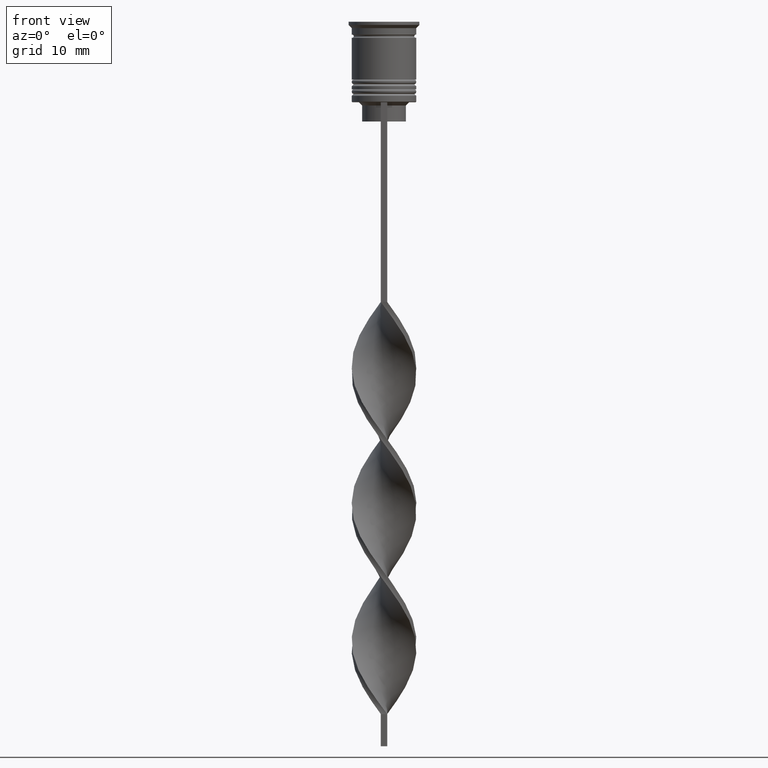
[diagram: clean part render]
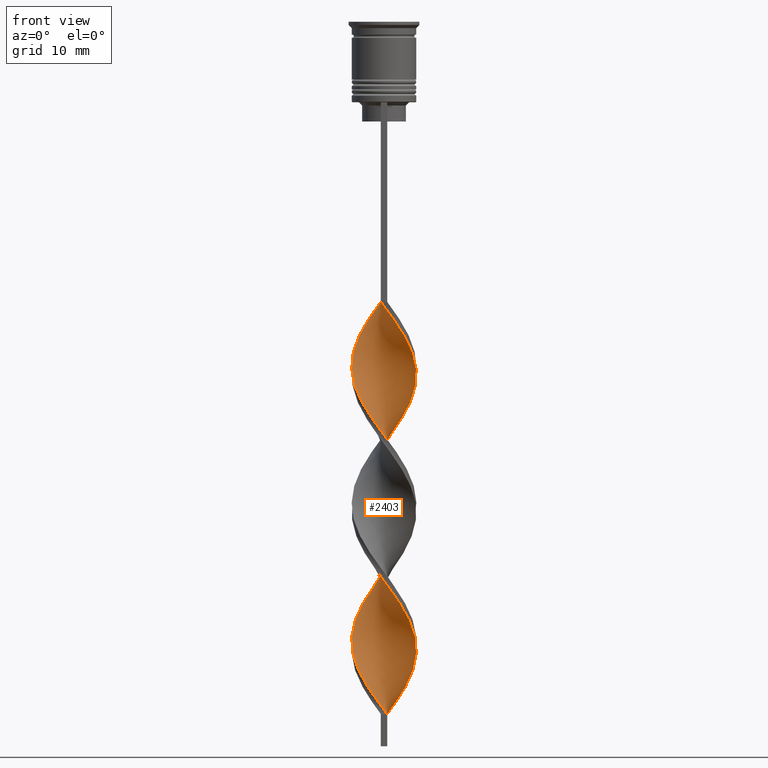
[diagram: same view with one face highlighted and labeled with its STEP entity id]
A machine part, front view. The second image highlights one B-rep face of the part: STEP entity #2403.
In plain terms, the highlighted face is a freeform B-spline surface patch.
Its self-contained STEP definition (entity closure, byte-faithful):
#20 = CARTESIAN_POINT ( 'NONE',  ( -1.107109916111305381, -4.939289008388868751, -85.34615384615383959 ) ) ;
#24 = CARTESIAN_POINT ( 'NONE',  ( -4.852383656948343393, 1.305516313869971912, -51.70512820512820440 ) ) ;
#34 = CARTESIAN_POINT ( 'NONE',  ( -4.852383656948343393, 1.305516313869971912, -51.70512820512820440 ) ) ;
#36 = CARTESIAN_POINT ( 'NONE',  ( -4.497778769905806939, -2.240532556555384858, -56.62820512820513130 ) ) ;
#48 = CARTESIAN_POINT ( 'NONE',  ( -2.256988544190326795, 4.530813501584094460, -45.96153846153845279 ) ) ;
#51 = CARTESIAN_POINT ( 'NONE',  ( -4.225728863414810910, -2.786661774892328580, -57.44871794871794890 ) ) ;
#70 = CARTESIAN_POINT ( 'NONE',  ( -3.436045048790600465, -3.716969558312885891, -59.08974358974359120 ) ) ;
#73 = CARTESIAN_POINT ( 'NONE',  ( -0.1071099161113050757, -5.060710991611131249, -106.6794871794871824 ) ) ;
#85 = CARTESIAN_POINT ( 'NONE',  ( -1.880887847392239021, -4.659641714287934278, -61.55128205128204399 ) ) ;
#89 = CARTESIAN_POINT ( 'NONE',  ( -5.023812710617932886, 0.1063289642275891955, -96.01282051282051100 ) ) ;
#99 = CARTESIAN_POINT ( 'NONE',  ( 2.446670785446254381, 4.431260581638921003, -82.06410256410255499 ) ) ;
#102 = CARTESIAN_POINT ( 'NONE',  ( 0.1071099161113025777, -5.060710991611129472, -44.32051282051282470 ) ) ;
#103 = CARTESIAN_POINT ( 'NONE',  ( 4.398951702833860722, -2.428831800708952215, -71.39743589743588359 ) ) ;
#125 = CARTESIAN_POINT ( 'NONE',  ( 1.107109916111304937, 4.939289008388868751, -64.01282051282051100 ) ) ;
#141 = CARTESIAN_POINT ( 'NONE',  ( -4.225728863414810910, -2.786661774892328136, -100.1153846153846274 ) ) ;
#144 = CARTESIAN_POINT ( 'NONE',  ( -1.682049230150818975, -4.735051254986478497, -84.52564102564103621 ) ) ;
#161 = CARTESIAN_POINT ( 'NONE',  ( 4.225728863414809133, -2.786661774892328136, -50.88461538461537970 ) ) ;
#185 = CARTESIAN_POINT ( 'NONE',  ( -2.766343873045450152, -4.194918542244163717, -82.88461538461537259 ) ) ;
#222 = CARTESIAN_POINT ( 'NONE',  ( 5.036723384328412934, -0.5036723384328417596, -96.83333333333332860 ) ) ;
#239 = EDGE_LOOP ( 'NONE', ( #1200, #953, #3186, #1081 ) ) ;
#242 = CARTESIAN_POINT ( 'NONE',  ( 4.398951702833859834, 2.428831800708949995, -58.26923076923076650 ) ) ;
#246 = VECTOR ( 'NONE', #3669, 1000.000000000000000 ) ;
#263 = CARTESIAN_POINT ( 'NONE',  ( -4.398951702833860722, -2.428831800708949551, -79.60256410256410220 ) ) ;
#280 = CARTESIAN_POINT ( 'NONE',  ( 1.107109916111304715, 4.939289008388868751, -64.01282051282051100 ) ) ;
#295 = CARTESIAN_POINT ( 'NONE',  ( -1.682049230150818975, -4.735051254986478497, -84.52564102564103621 ) ) ;
#317 = CARTESIAN_POINT ( 'NONE',  ( 0.4999999999999993339, -5.000000000000000888, -64.83333333333332860 ) ) ;
#321 = CARTESIAN_POINT ( 'NONE',  ( 3.830886956102703245, -3.251815666602607013, -50.06410256410256210 ) ) ;
#322 = CARTESIAN_POINT ( 'NONE',  ( -4.398951702833860722, 2.428831800708952215, -92.73076923076922640 ) ) ;
#333 = CARTESIAN_POINT ( 'NONE',  ( 5.036723384328414710, 0.5036723384328404274, -75.49999999999998579 ) ) ;
#335 = CARTESIAN_POINT ( 'NONE',  ( -3.830886956102705021, -3.251815666602607013, -100.9358974358974308 ) ) ;
#346 = CARTESIAN_POINT ( 'NONE',  ( -4.398951702833860722, 2.428831800708952215, -92.73076923076922640 ) ) ;
#351 = CARTESIAN_POINT ( 'NONE',  ( -3.436045048790600465, -3.716969558312885891, -59.08974358974358410 ) ) ;
#369 = CARTESIAN_POINT ( 'NONE',  ( -5.010902036907451063, 0.7163302668880185964, -52.52564102564103621 ) ) ;
#374 = CARTESIAN_POINT ( 'NONE',  ( 1.315104909338225214, 4.888022846936948440, -83.70512820512820440 ) ) ;
#384 = CARTESIAN_POINT ( 'NONE',  ( -3.689868665289526728, 3.410992411735109364, -48.42307692307691269 ) ) ;
#387 = CARTESIAN_POINT ( 'NONE',  ( 4.497778769905806939, 2.240532556555385302, -77.96153846153845279 ) ) ;
#400 = CARTESIAN_POINT ( 'NONE',  ( 5.010902036907447510, 0.7163302668880174862, -55.80769230769230660 ) ) ;
#420 = CARTESIAN_POINT ( 'NONE',  ( 2.256988544190328128, 4.530813501584091796, -62.37179487179486870 ) ) ;
#421 = CARTESIAN_POINT ( 'NONE',  ( 1.315104909338222106, -4.888022846936947552, -45.96153846153845279 ) ) ;
#436 = CARTESIAN_POINT ( 'NONE',  ( -0.1071099161113013842, 5.060710991611129472, -65.65384615384614619 ) ) ;
#450 = CARTESIAN_POINT ( 'NONE',  ( -3.830886956102705021, -3.251815666602607013, -100.9358974358974308 ) ) ;
#452 = CARTESIAN_POINT ( 'NONE',  ( -4.693865276989234836, -1.894702360851920231, -78.78205128205127039 ) ) ;
#454 = CARTESIAN_POINT ( 'NONE',  ( 4.225728863414809133, -2.786661774892327692, -50.88461538461538680 ) ) ;
#476 = CARTESIAN_POINT ( 'NONE',  ( -4.225728863414807357, 2.786661774892330357, -72.21794871794871540 ) ) ;
#496 = CARTESIAN_POINT ( 'NONE',  ( -4.903276030362607507, 1.099037838325644723, -74.67948717948718240 ) ) ;
#515 = CARTESIAN_POINT ( 'NONE',  ( 4.497778769905805163, -2.240532556555385746, -94.37179487179486159 ) ) ;
#537 = CARTESIAN_POINT ( 'NONE',  ( -2.446670785446251273, 4.431260581638920115, -68.93589743589743080 ) ) ;
#557 = CARTESIAN_POINT ( 'NONE',  ( -5.023812710617931110, -0.1063289642275845326, -76.32051282051281760 ) ) ;
#559 = CARTESIAN_POINT ( 'NONE',  ( -2.256988544190327239, 4.530813501584094460, -45.96153846153845990 ) ) ;
#572 = CARTESIAN_POINT ( 'NONE',  ( -5.036723384328412934, 0.5036723384328424258, -75.49999999999998579 ) ) ;
#578 =( BOUNDED_SURFACE ( )  B_SPLINE_SURFACE ( 1, 2, ( 
 ( #979, #1838, #2984, #421, #3021, #1557, #2707, #2430, #3562, #454, #993, #3289, #726, #1860, #3004, #2858, #3061, #1921, #242, #835, #3390, #2281, #1376, #2222, #1411, #280, #1995, #2528, #3134, #1978, #3077, #537, #2562, #3119, #3700, #2581, #1080, #1098, #496, #572, #557, #2545, #1129, #1707, #263, #2841, #2501, #1692, #3413, #1393, #295, #20, #1353, #1940, #855, #3359, #1630, #799, #1431, #1152, #2298, #2255, #515, #3429, #2782, #222, #3644, #1648, #3666, #2801, #2240, #3375, #815, #1954, #3094, #1672, #2824, #3686, #1114 ),
 ( #1519, #1203, #2596, #48, #2047, #2932, #384, #3206, #2892, #2651, #34, #369, #3485, #2370, #884, #936, #2034, #645, #2387, #70, #1730, #2666, #85, #1468, #1216, #610, #317, #922, #1166, #2357, #3171, #3502, #2078, #3446, #1746, #3227, #869, #2063, #1451, #333, #2611, #1504, #2877, #1780, #666, #1180, #2338, #99, #1804, #2946, #1234, #3189, #2317, #2010, #3471, #907, #627, #1763, #2912, #3148, #346, #1484, #590, #2633, #1871, #721, #958, #2703, #3558, #141, #450, #1585, #2999, #1290, #3263, #2427, #698, #1831, #2739 ) ),
 .UNSPECIFIED., .F., .F., .F. ) 
 B_SPLINE_SURFACE_WITH_KNOTS ( ( 2, 2 ),
 ( 3, 2, 2, 2, 2, 2, 2, 2, 2, 2, 2, 2, 2, 2, 2, 2, 2, 2, 2, 2, 2, 2, 2, 2, 2, 2, 2, 2, 2, 2, 2, 2, 2, 2, 2, 2, 2, 2, 2, 3 ),
 ( 0.000000000000000000, 1.000000000000000000 ),
 ( 0.000000000000000000, 0.01923076923076923184, 0.03846153846153846367, 0.05769230769230769551, 0.07692307692307692735, 0.09615384615384615918, 0.1153846153846153910, 0.1346153846153846090, 0.1538461538461538547, 0.1730769230769230727, 0.1923076923076923184, 0.2115384615384615363, 0.2307692307692307820, 0.2500000000000000000, 0.2692307692307692180, 0.2884615384615384359, 0.3076923076923077094, 0.3269230769230769273, 0.3461538461538461453, 0.3653846153846153633, 0.3846153846153846367, 0.4038461538461538547, 0.4230769230769230727, 0.4423076923076922906, 0.4615384615384615641, 0.4807692307692307820, 0.5000000000000000000, 0.5192307692307692735, 0.5384615384615384359, 0.5576923076923077094, 0.5769230769230768718, 0.5961538461538461453, 0.6153846153846154188, 0.6346153846153845812, 0.6538461538461538547, 0.6730769230769231282, 0.6923076923076922906, 0.7115384615384615641, 0.7307692307692307265, 0.7500000000000000000 ),
 .UNSPECIFIED. ) 
 GEOMETRIC_REPRESENTATION_ITEM ( )  RATIONAL_B_SPLINE_SURFACE ( (
 ( 1.000000000000000000, 0.9927088740980539727, 1.000000000000000000, 0.9927088740980539727, 1.000000000000000000, 0.9927088740980539727, 1.000000000000000000, 0.9927088740980539727, 1.000000000000000000, 0.9927088740980539727, 1.000000000000000000, 0.9927088740980539727, 1.000000000000000000, 0.9927088740980539727, 1.000000000000000000, 0.9927088740980539727, 1.000000000000000000, 0.9927088740980539727, 1.000000000000000000, 0.9927088740980539727, 1.000000000000000000, 0.9927088740980539727, 1.000000000000000000, 0.9927088740980539727, 1.000000000000000000, 0.9927088740980539727, 1.000000000000000000, 0.9927088740980539727, 1.000000000000000000, 0.9927088740980539727, 1.000000000000000000, 0.9927088740980539727, 1.000000000000000000, 0.9927088740980539727, 1.000000000000000000, 0.9927088740980539727, 1.000000000000000000, 0.9927088740980539727, 1.000000000000000000, 0.9927088740980539727, 1.000000000000000000, 0.9927088740980539727, 1.000000000000000000, 0.9927088740980539727, 1.000000000000000000, 0.9927088740980539727, 1.000000000000000000, 0.9927088740980539727, 1.000000000000000000, 0.9927088740980539727, 1.000000000000000000, 0.9927088740980539727, 1.000000000000000000, 0.9927088740980539727, 1.000000000000000000, 0.9927088740980539727, 1.000000000000000000, 0.9927088740980539727, 1.000000000000000000, 0.9927088740980539727, 1.000000000000000000, 0.9927088740980539727, 1.000000000000000000, 0.9927088740980539727, 1.000000000000000000, 0.9927088740980539727, 1.000000000000000000, 0.9927088740980539727, 1.000000000000000000, 0.9927088740980539727, 1.000000000000000000, 0.9927088740980539727, 1.000000000000000000, 0.9927088740980539727, 1.000000000000000000, 0.9927088740980539727, 1.000000000000000000, 0.9927088740980539727, 1.000000000000000000),
 ( 1.000000000000000000, 0.9927088740980539727, 1.000000000000000000, 0.9927088740980539727, 1.000000000000000000, 0.9927088740980539727, 1.000000000000000000, 0.9927088740980539727, 1.000000000000000000, 0.9927088740980539727, 1.000000000000000000, 0.9927088740980539727, 1.000000000000000000, 0.9927088740980539727, 1.000000000000000000, 0.9927088740980539727, 1.000000000000000000, 0.9927088740980539727, 1.000000000000000000, 0.9927088740980539727, 1.000000000000000000, 0.9927088740980539727, 1.000000000000000000, 0.9927088740980539727, 1.000000000000000000, 0.9927088740980539727, 1.000000000000000000, 0.9927088740980539727, 1.000000000000000000, 0.9927088740980539727, 1.000000000000000000, 0.9927088740980539727, 1.000000000000000000, 0.9927088740980539727, 1.000000000000000000, 0.9927088740980539727, 1.000000000000000000, 0.9927088740980539727, 1.000000000000000000, 0.9927088740980539727, 1.000000000000000000, 0.9927088740980539727, 1.000000000000000000, 0.9927088740980539727, 1.000000000000000000, 0.9927088740980539727, 1.000000000000000000, 0.9927088740980539727, 1.000000000000000000, 0.9927088740980539727, 1.000000000000000000, 0.9927088740980539727, 1.000000000000000000, 0.9927088740980539727, 1.000000000000000000, 0.9927088740980539727, 1.000000000000000000, 0.9927088740980539727, 1.000000000000000000, 0.9927088740980539727, 1.000000000000000000, 0.9927088740980539727, 1.000000000000000000, 0.9927088740980539727, 1.000000000000000000, 0.9927088740980539727, 1.000000000000000000, 0.9927088740980539727, 1.000000000000000000, 0.9927088740980539727, 1.000000000000000000, 0.9927088740980539727, 1.000000000000000000, 0.9927088740980539727, 1.000000000000000000, 0.9927088740980539727, 1.000000000000000000, 0.9927088740980539727, 1.000000000000000000) ) ) 
 REPRESENTATION_ITEM ( '' )  SURFACE ( )  );
#590 = CARTESIAN_POINT ( 'NONE',  ( -4.852383656948343393, 1.305516313869971912, -94.37179487179486159 ) ) ;
#596 = CARTESIAN_POINT ( 'NONE',  ( 2.941357917118423870, -4.074115069975903225, -48.42307692307691269 ) ) ;
#610 = CARTESIAN_POINT ( 'NONE',  ( -0.1071099161113050757, -5.060710991611132137, -64.01282051282051100 ) ) ;
#613 = CARTESIAN_POINT ( 'NONE',  ( -3.275699201900568180, 3.859023582904238303, -90.26923076923077360 ) ) ;
#627 = CARTESIAN_POINT ( 'NONE',  ( -2.766343873045447932, 4.194918542244166382, -89.44871794871794179 ) ) ;
#633 = CARTESIAN_POINT ( 'NONE',  ( -0.7111074127247647425, -4.974366919274038956, -63.19230769230768630 ) ) ;
#645 = CARTESIAN_POINT ( 'NONE',  ( -4.225728863414810910, -2.786661774892328136, -57.44871794871794890 ) ) ;
#649 = CARTESIAN_POINT ( 'NONE',  ( -2.256988544190327239, 4.530813501584094460, -88.62820512820512420 ) ) ;
#666 = CARTESIAN_POINT ( 'NONE',  ( 3.830886956102705465, 3.251815666602607013, -79.60256410256410220 ) ) ;
#670 = CARTESIAN_POINT ( 'NONE',  ( 5.010902036907449286, -0.7163302668880181523, -73.85897435897436480 ) ) ;
#687 = CARTESIAN_POINT ( 'NONE',  ( 4.903276030362607507, -1.099037838325642946, -53.34615384615383959 ) ) ;
#688 = CARTESIAN_POINT ( 'NONE',  ( -4.497778769905806939, -2.240532556555384858, -99.29487179487178139 ) ) ;
#698 = CARTESIAN_POINT ( 'NONE',  ( -0.7111074127247647425, -4.974366919274038956, -105.8589743589743506 ) ) ;
#701 = CARTESIAN_POINT ( 'NONE',  ( 4.225728863414809133, -2.786661774892328136, -93.55128205128204399 ) ) ;
#721 = CARTESIAN_POINT ( 'NONE',  ( -5.036723384328414710, -0.5036723384328410935, -96.83333333333332860 ) ) ;
#725 = CARTESIAN_POINT ( 'NONE',  ( 4.398951702833859834, 2.428831800708949995, -100.9358974358974308 ) ) ;
#726 = CARTESIAN_POINT ( 'NONE',  ( 4.903276030362607507, -1.099037838325642946, -53.34615384615383959 ) ) ;
#740 = CARTESIAN_POINT ( 'NONE',  ( 0.5000000000000006661, 4.999999999999999112, -64.83333333333332860 ) ) ;
#741 = FACE_OUTER_BOUND ( 'NONE', #239, .T. ) ;
#758 = CARTESIAN_POINT ( 'NONE',  ( 5.010902036907447510, 0.7163302668880174862, -98.47435897435896379 ) ) ;
#799 = CARTESIAN_POINT ( 'NONE',  ( 2.446670785446252161, -4.431260581638920115, -90.26923076923075939 ) ) ;
#815 = CARTESIAN_POINT ( 'NONE',  ( 3.689868665289526728, 3.410992411735105811, -102.5769230769230660 ) ) ;
#835 = CARTESIAN_POINT ( 'NONE',  ( 4.104038128678484831, 2.962961240565976428, -59.08974358974359120 ) ) ;
#855 = CARTESIAN_POINT ( 'NONE',  ( 0.7111074127247624110, -4.974366919274038068, -87.80769230769230660 ) ) ;
#869 = CARTESIAN_POINT ( 'NONE',  ( 4.852383656948343393, -1.305516313869972578, -73.03846153846153300 ) ) ;
#872 = CARTESIAN_POINT ( 'NONE',  ( -5.010902036907450174, 0.7163302668880185964, -52.52564102564102910 ) ) ;
#884 = CARTESIAN_POINT ( 'NONE',  ( -4.903276030362609283, -1.099037838325641614, -54.98717948717948190 ) ) ;
#890 = CARTESIAN_POINT ( 'NONE',  ( 2.446670785446254381, 4.431260581638920115, -82.06410256410255499 ) ) ;
#907 = CARTESIAN_POINT ( 'NONE',  ( -2.256988544190326795, 4.530813501584094460, -88.62820512820513841 ) ) ;
#912 = CARTESIAN_POINT ( 'NONE',  ( 5.023812710617932886, -0.1063289642275909302, -74.67948717948718240 ) ) ;
#922 = CARTESIAN_POINT ( 'NONE',  ( 1.107109916111302050, -4.939289008388870528, -65.65384615384614619 ) ) ;
#927 = CARTESIAN_POINT ( 'NONE',  ( 4.903276030362611060, 1.099037838325638727, -76.32051282051281760 ) ) ;
#936 = CARTESIAN_POINT ( 'NONE',  ( -4.769828676396805633, -1.694403338218443356, -55.80769230769230660 ) ) ;
#940 = CARTESIAN_POINT ( 'NONE',  ( -0.1071099161113050757, -5.060710991611131249, -64.01282051282051100 ) ) ;
#953 = ORIENTED_EDGE ( 'NONE', *, *, #2252, .T. ) ;
#958 = CARTESIAN_POINT ( 'NONE',  ( -4.903276030362609283, -1.099037838325641614, -97.65384615384614619 ) ) ;
#962 = CARTESIAN_POINT ( 'NONE',  ( -5.036723384328413822, 0.5036723384328424258, -75.50000000000000000 ) ) ;
#963 = CARTESIAN_POINT ( 'NONE',  ( -0.5000000000000000000, 5.000000000000000888, -86.16666666666667140 ) ) ;
#978 = CARTESIAN_POINT ( 'NONE',  ( -3.275699201900568625, -3.859023582904236527, -82.06410256410255499 ) ) ;
#979 = CARTESIAN_POINT ( 'NONE',  ( -0.5000000000000000000, -4.999999999999999112, -43.50000000000000000 ) ) ;
#987 = EDGE_CURVE ( 'NONE', #1177, #1348, #1996, .T. ) ;
#992 = CARTESIAN_POINT ( 'NONE',  ( 4.852383656948341617, 1.305516313869969469, -99.29487179487178139 ) ) ;
#993 = CARTESIAN_POINT ( 'NONE',  ( 4.497778769905805163, -2.240532556555385746, -51.70512820512820440 ) ) ;
#1017 = CARTESIAN_POINT ( 'NONE',  ( -3.830886956102703245, 3.251815666602607013, -71.39743589743588359 ) ) ;
#1038 = CARTESIAN_POINT ( 'NONE',  ( 1.880887847392237244, -4.659641714287933389, -89.44871794871794179 ) ) ;
#1080 = CARTESIAN_POINT ( 'NONE',  ( -4.497778769905805163, 2.240532556555386634, -73.03846153846153300 ) ) ;
#1081 = ORIENTED_EDGE ( 'NONE', *, *, #1227, .F. ) ;
#1084 = CARTESIAN_POINT ( 'NONE',  ( -4.903276030362609283, -1.099037838325641614, -54.98717948717948190 ) ) ;
#1098 = CARTESIAN_POINT ( 'NONE',  ( -4.769828676396803857, 1.694403338218443356, -73.85897435897436480 ) ) ;
#1114 = CARTESIAN_POINT ( 'NONE',  ( 0.5000000000000006661, 4.999999999999999112, -107.5000000000000000 ) ) ;
#1129 = CARTESIAN_POINT ( 'NONE',  ( -4.852383656948341617, -1.305516313869969913, -77.96153846153845279 ) ) ;
#1152 = CARTESIAN_POINT ( 'NONE',  ( 3.436045048790597800, -3.716969558312886335, -91.91025641025643722 ) ) ;
#1166 = CARTESIAN_POINT ( 'NONE',  ( 1.682049230150813424, -4.735051254986482938, -66.47435897435896379 ) ) ;
#1168 = CARTESIAN_POINT ( 'NONE',  ( -2.446670785446253937, -4.431260581638920115, -103.3974358974358836 ) ) ;
#1177 = VERTEX_POINT ( 'NONE', #3449 ) ;
#1180 = CARTESIAN_POINT ( 'NONE',  ( 3.436045048790602241, 3.716969558312884114, -80.42307692307691980 ) ) ;
#1186 = CARTESIAN_POINT ( 'NONE',  ( 2.256988544190325463, -4.530813501584094460, -67.29487179487178139 ) ) ;
#1200 = ORIENTED_EDGE ( 'NONE', *, *, #987, .T. ) ;
#1203 = CARTESIAN_POINT ( 'NONE',  ( -1.107109916111303161, 4.939289008388870528, -44.32051282051282470 ) ) ;
#1206 = CARTESIAN_POINT ( 'NONE',  ( 0.4999999999999993339, -5.000000000000000888, -107.5000000000000000 ) ) ;
#1216 = CARTESIAN_POINT ( 'NONE',  ( -0.7111074127247647425, -4.974366919274038956, -63.19230769230768630 ) ) ;
#1220 = CARTESIAN_POINT ( 'NONE',  ( 2.941357917118427867, 4.074115069975902337, -81.24358974358973740 ) ) ;
#1227 = EDGE_CURVE ( 'NONE', #1177, #2524, #3275, .T. ) ;
#1234 = CARTESIAN_POINT ( 'NONE',  ( 0.7111074127247676291, 4.974366919274039844, -84.52564102564103621 ) ) ;
#1241 = CARTESIAN_POINT ( 'NONE',  ( -4.903276030362607507, 1.099037838325644723, -74.67948717948718240 ) ) ;
#1242 = CARTESIAN_POINT ( 'NONE',  ( -4.903276030362609283, -1.099037838325641614, -97.65384615384614619 ) ) ;
#1259 = CARTESIAN_POINT ( 'NONE',  ( 0.5000000000000006661, 4.999999999999999112, -107.5000000000000000 ) ) ;
#1261 = CARTESIAN_POINT ( 'NONE',  ( 5.036723384328413822, -0.5036723384328417596, -54.16666666666666430 ) ) ;
#1275 = CARTESIAN_POINT ( 'NONE',  ( 5.036723384328413822, -0.5036723384328417596, -96.83333333333332860 ) ) ;
#1290 = CARTESIAN_POINT ( 'NONE',  ( -2.446670785446253937, -4.431260581638921003, -103.3974358974358694 ) ) ;
#1293 = CARTESIAN_POINT ( 'NONE',  ( 5.023812710617931110, 0.1063289642275872526, -54.98717948717948190 ) ) ;
#1320 = CARTESIAN_POINT ( 'NONE',  ( -2.256988544190328572, -4.530813501584091796, -83.70512820512820440 ) ) ;
#1348 = VERTEX_POINT ( 'NONE', #2280 ) ;
#1352 = CARTESIAN_POINT ( 'NONE',  ( 2.766343873045447488, 4.194918542244164605, -104.2179487179487012 ) ) ;
#1353 = CARTESIAN_POINT ( 'NONE',  ( -0.5000000000000000000, -4.999999999999999112, -86.16666666666667140 ) ) ;
#1376 = CARTESIAN_POINT ( 'NONE',  ( 2.766343873045447488, 4.194918542244164605, -61.55128205128204399 ) ) ;
#1380 = CARTESIAN_POINT ( 'NONE',  ( -1.107109916111303161, 4.939289008388870528, -44.32051282051282470 ) ) ;
#1390 = VERTEX_POINT ( 'NONE', #2823 ) ;
#1392 = CARTESIAN_POINT ( 'NONE',  ( 1.107109916111304937, 4.939289008388868751, -106.6794871794871824 ) ) ;
#1393 = CARTESIAN_POINT ( 'NONE',  ( -2.256988544190328128, -4.530813501584091796, -83.70512820512820440 ) ) ;
#1410 = CARTESIAN_POINT ( 'NONE',  ( 2.256988544190328128, 4.530813501584091796, -105.0384615384615188 ) ) ;
#1411 = CARTESIAN_POINT ( 'NONE',  ( 1.682049230150816088, 4.735051254986480274, -63.19230769230768630 ) ) ;
#1431 = CARTESIAN_POINT ( 'NONE',  ( 2.941357917118423870, -4.074115069975903225, -91.08974358974359120 ) ) ;
#1451 = CARTESIAN_POINT ( 'NONE',  ( 5.023812710617932886, -0.1063289642275909302, -74.67948717948718240 ) ) ;
#1454 = CARTESIAN_POINT ( 'NONE',  ( -2.446670785446253937, -4.431260581638920115, -60.73076923076922640 ) ) ;
#1468 = CARTESIAN_POINT ( 'NONE',  ( -1.315104909338224992, -4.888022846936948440, -62.37179487179486870 ) ) ;
#1472 = CARTESIAN_POINT ( 'NONE',  ( -4.104038128678485720, 2.962961240565979537, -91.91025641025643722 ) ) ;
#1484 = CARTESIAN_POINT ( 'NONE',  ( -4.693865276989236612, 1.894702360851924006, -93.55128205128204399 ) ) ;
#1490 = CARTESIAN_POINT ( 'NONE',  ( -1.315104909338224770, -4.888022846936948440, -62.37179487179486870 ) ) ;
#1504 = CARTESIAN_POINT ( 'NONE',  ( 4.769828676396806522, 1.694403338218441801, -77.14102564102563520 ) ) ;
#1508 = CARTESIAN_POINT ( 'NONE',  ( -2.766343873045447932, 4.194918542244166382, -89.44871794871794179 ) ) ;
#1519 = CARTESIAN_POINT ( 'NONE',  ( -0.5000000000000000000, 5.000000000000000888, -43.50000000000000000 ) ) ;
#1523 = CARTESIAN_POINT ( 'NONE',  ( 4.225728863414812686, 2.786661774892325916, -78.78205128205127039 ) ) ;
#1536 = CARTESIAN_POINT ( 'NONE',  ( 4.693865276989234836, 1.894702360851922895, -57.44871794871794890 ) ) ;
#1550 = B_SPLINE_CURVE_WITH_KNOTS ( 'NONE', 3,
 ( #2751, #1924, #1576, #2786 ),
 .UNSPECIFIED., .F., .F.,
 ( 4, 4 ),
 ( 0.000000000000000000, 1.000000000000000000 ),
 .UNSPECIFIED. ) ;
#1555 = CARTESIAN_POINT ( 'NONE',  ( -3.436045048790596468, 3.716969558312887667, -70.57692307692306599 ) ) ;
#1557 = CARTESIAN_POINT ( 'NONE',  ( 2.446670785446252161, -4.431260581638920115, -47.60256410256408799 ) ) ;
#1573 = CARTESIAN_POINT ( 'NONE',  ( 3.689868665289526728, 3.410992411735105811, -102.5769230769230660 ) ) ;
#1576 = CARTESIAN_POINT ( 'NONE',  ( 0.4999999999999997780, -1.666666666666667851, -107.5000000000000000 ) ) ;
#1585 = CARTESIAN_POINT ( 'NONE',  ( -3.436045048790600465, -3.716969558312885891, -101.7564102564102484 ) ) ;
#1588 = CARTESIAN_POINT ( 'NONE',  ( 4.769828676396802969, -1.694403338218443578, -52.52564102564102910 ) ) ;
#1610 = CARTESIAN_POINT ( 'NONE',  ( 2.766343873045447488, 4.194918542244164605, -61.55128205128204399 ) ) ;
#1630 = CARTESIAN_POINT ( 'NONE',  ( 1.880887847392237244, -4.659641714287933389, -89.44871794871794179 ) ) ;
#1648 = CARTESIAN_POINT ( 'NONE',  ( 5.010902036907448398, 0.7163302668880174862, -98.47435897435896379 ) ) ;
#1672 = CARTESIAN_POINT ( 'NONE',  ( 2.256988544190327683, 4.530813501584091796, -105.0384615384615330 ) ) ;
#1692 = CARTESIAN_POINT ( 'NONE',  ( -3.275699201900568625, -3.859023582904236527, -82.06410256410255499 ) ) ;
#1694 = CARTESIAN_POINT ( 'NONE',  ( -2.766343873045447932, 4.194918542244166382, -46.78205128205127750 ) ) ;
#1706 = CARTESIAN_POINT ( 'NONE',  ( 1.682049230150816088, 4.735051254986480274, -105.8589743589743506 ) ) ;
#1707 = CARTESIAN_POINT ( 'NONE',  ( -4.693865276989234836, -1.894702360851920009, -78.78205128205127039 ) ) ;
#1730 = CARTESIAN_POINT ( 'NONE',  ( -2.941357917118427423, -4.074115069975902337, -59.91025641025640880 ) ) ;
#1746 = CARTESIAN_POINT ( 'NONE',  ( 4.398951702833860722, -2.428831800708952215, -71.39743589743588359 ) ) ;
#1750 = CARTESIAN_POINT ( 'NONE',  ( -2.941357917118427423, -4.074115069975902337, -102.5769230769230660 ) ) ;
#1763 = CARTESIAN_POINT ( 'NONE',  ( -3.275699201900568180, 3.859023582904238303, -90.26923076923075939 ) ) ;
#1768 = CARTESIAN_POINT ( 'NONE',  ( -0.7111074127247647425, -4.974366919274038956, -105.8589743589743506 ) ) ;
#1780 = CARTESIAN_POINT ( 'NONE',  ( 4.225728863414811798, 2.786661774892325916, -78.78205128205127039 ) ) ;
#1788 = CARTESIAN_POINT ( 'NONE',  ( 1.682049230150813424, -4.735051254986482938, -66.47435897435896379 ) ) ;
#1804 = CARTESIAN_POINT ( 'NONE',  ( 1.880887847392241907, 4.659641714287933389, -82.88461538461537259 ) ) ;
#1808 = CARTESIAN_POINT ( 'NONE',  ( 3.436045048790602241, 3.716969558312884114, -80.42307692307691980 ) ) ;
#1820 = CARTESIAN_POINT ( 'NONE',  ( 1.315104909338222328, -4.888022846936947552, -88.62820512820512420 ) ) ;
#1821 = CARTESIAN_POINT ( 'NONE',  ( -2.941357917118427423, -4.074115069975902337, -59.91025641025640880 ) ) ;
#1831 = CARTESIAN_POINT ( 'NONE',  ( -0.1071099161113050757, -5.060710991611132137, -106.6794871794871682 ) ) ;
#1836 = CARTESIAN_POINT ( 'NONE',  ( 4.769828676396802969, -1.694403338218443578, -95.19230769230769340 ) ) ;
#1838 = CARTESIAN_POINT ( 'NONE',  ( 0.1071099161113025638, -5.060710991611130360, -44.32051282051282470 ) ) ;
#1859 = CARTESIAN_POINT ( 'NONE',  ( 4.104038128678485720, 2.962961240565976428, -101.7564102564102484 ) ) ;
#1860 = CARTESIAN_POINT ( 'NONE',  ( 5.036723384328412934, -0.5036723384328417596, -54.16666666666665719 ) ) ;
#1871 = CARTESIAN_POINT ( 'NONE',  ( -5.023812710617932886, 0.1063289642275891955, -96.01282051282051100 ) ) ;
#1875 = CARTESIAN_POINT ( 'NONE',  ( -5.010902036907448398, -0.7163302668880155988, -77.14102564102563520 ) ) ;
#1893 = CARTESIAN_POINT ( 'NONE',  ( -0.7111074127247609677, 4.974366919274038956, -66.47435897435896379 ) ) ;
#1921 = CARTESIAN_POINT ( 'NONE',  ( 4.693865276989234836, 1.894702360851922673, -57.44871794871794890 ) ) ;
#1924 = CARTESIAN_POINT ( 'NONE',  ( 0.5000000000000002220, 1.666666666666666075, -107.5000000000000000 ) ) ;
#1940 = CARTESIAN_POINT ( 'NONE',  ( 0.1071099161113025638, -5.060710991611130360, -86.98717948717948900 ) ) ;
#1954 = CARTESIAN_POINT ( 'NONE',  ( 3.275699201900568180, 3.859023582904236527, -103.3974358974358694 ) ) ;
#1978 = CARTESIAN_POINT ( 'NONE',  ( -1.315104909338220551, 4.888022846936948440, -67.29487179487178139 ) ) ;
#1981 = CARTESIAN_POINT ( 'NONE',  ( -0.5000000000000000000, 5.000000000000000888, -43.50000000000000000 ) ) ;
#1995 = CARTESIAN_POINT ( 'NONE',  ( 0.5000000000000006661, 4.999999999999999112, -64.83333333333332860 ) ) ;
#1996 = LINE ( 'NONE', #3135, #246 ) ;
#2010 = CARTESIAN_POINT ( 'NONE',  ( -1.107109916111303161, 4.939289008388870528, -86.98717948717948900 ) ) ;
#2014 = CARTESIAN_POINT ( 'NONE',  ( -5.023812710617932886, 0.1063289642275891955, -53.34615384615383959 ) ) ;
#2034 = CARTESIAN_POINT ( 'NONE',  ( -4.497778769905806939, -2.240532556555384858, -56.62820512820513130 ) ) ;
#2038 = CARTESIAN_POINT ( 'NONE',  ( -5.010902036907450174, 0.7163302668880185964, -95.19230769230769340 ) ) ;
#2047 = CARTESIAN_POINT ( 'NONE',  ( -2.766343873045447932, 4.194918542244166382, -46.78205128205127750 ) ) ;
#2052 = CARTESIAN_POINT ( 'NONE',  ( 1.315104909338222328, -4.888022846936947552, -45.96153846153845990 ) ) ;
#2053 = CARTESIAN_POINT ( 'NONE',  ( -1.682049230150814978, 4.735051254986482050, -87.80769230769230660 ) ) ;
#2063 = CARTESIAN_POINT ( 'NONE',  ( 5.010902036907450174, -0.7163302668880181523, -73.85897435897436480 ) ) ;
#2067 = CARTESIAN_POINT ( 'NONE',  ( 3.830886956102705465, 3.251815666602607013, -79.60256410256410220 ) ) ;
#2078 = CARTESIAN_POINT ( 'NONE',  ( 3.689868665289526284, -3.410992411735109808, -69.75641025641024839 ) ) ;
#2086 = CARTESIAN_POINT ( 'NONE',  ( 0.4999999999999993339, -5.000000000000000888, -64.83333333333332860 ) ) ;
#2093 = EDGE_CURVE ( 'NONE', #2524, #1390, #1550, .T. ) ;
#2103 = CARTESIAN_POINT ( 'NONE',  ( 0.1071099161113025777, -5.060710991611129472, -86.98717948717948900 ) ) ;
#2104 = CARTESIAN_POINT ( 'NONE',  ( -4.769828676396804745, -1.694403338218443134, -55.80769230769230660 ) ) ;
#2121 = CARTESIAN_POINT ( 'NONE',  ( 2.446670785446252161, -4.431260581638919227, -90.26923076923077360 ) ) ;
#2141 = CARTESIAN_POINT ( 'NONE',  ( 4.693865276989234836, 1.894702360851922895, -100.1153846153846132 ) ) ;
#2161 = CARTESIAN_POINT ( 'NONE',  ( 4.398951702833859834, 2.428831800708949995, -58.26923076923076650 ) ) ;
#2178 = CARTESIAN_POINT ( 'NONE',  ( 3.830886956102703245, -3.251815666602607013, -92.73076923076922640 ) ) ;
#2222 = CARTESIAN_POINT ( 'NONE',  ( 2.256988544190327683, 4.530813501584091796, -62.37179487179486870 ) ) ;
#2225 = CARTESIAN_POINT ( 'NONE',  ( -3.275699201900568180, 3.859023582904238303, -47.60256410256409509 ) ) ;
#2240 = CARTESIAN_POINT ( 'NONE',  ( 4.398951702833859834, 2.428831800708949995, -100.9358974358974308 ) ) ;
#2252 = EDGE_CURVE ( 'NONE', #1348, #1390, #2493, .T. ) ;
#2255 = CARTESIAN_POINT ( 'NONE',  ( 4.225728863414809133, -2.786661774892327692, -93.55128205128204399 ) ) ;
#2280 = CARTESIAN_POINT ( 'NONE',  ( -0.5000000000000000000, 5.000000000000000888, -43.50000000000000000 ) ) ;
#2281 = CARTESIAN_POINT ( 'NONE',  ( 3.275699201900568180, 3.859023582904236527, -60.73076923076922640 ) ) ;
#2287 = CARTESIAN_POINT ( 'NONE',  ( -4.104038128678485720, 2.962961240565979537, -49.24358974358974450 ) ) ;
#2298 = CARTESIAN_POINT ( 'NONE',  ( 3.830886956102703245, -3.251815666602607013, -92.73076923076922640 ) ) ;
#2317 = CARTESIAN_POINT ( 'NONE',  ( -0.5000000000000000000, 5.000000000000000888, -86.16666666666667140 ) ) ;
#2321 = CARTESIAN_POINT ( 'NONE',  ( 4.693865276989234836, -1.894702360851926892, -72.21794871794871540 ) ) ;
#2338 = CARTESIAN_POINT ( 'NONE',  ( 2.941357917118427867, 4.074115069975902337, -81.24358974358973740 ) ) ;
#2342 = CARTESIAN_POINT ( 'NONE',  ( 3.275699201900568180, -3.859023582904239191, -68.93589743589743080 ) ) ;
#2357 = CARTESIAN_POINT ( 'NONE',  ( 2.256988544190325463, -4.530813501584094460, -67.29487179487178139 ) ) ;
#2362 = CARTESIAN_POINT ( 'NONE',  ( 0.7111074127247676291, 4.974366919274039844, -84.52564102564103621 ) ) ;
#2370 = CARTESIAN_POINT ( 'NONE',  ( -5.036723384328414710, -0.5036723384328410935, -54.16666666666665719 ) ) ;
#2374 = CARTESIAN_POINT ( 'NONE',  ( -4.852383656948343393, 1.305516313869971912, -94.37179487179486159 ) ) ;
#2387 = CARTESIAN_POINT ( 'NONE',  ( -3.830886956102705021, -3.251815666602607013, -58.26923076923076650 ) ) ;
#2395 = CARTESIAN_POINT ( 'NONE',  ( -4.769828676396803857, 1.694403338218443134, -73.85897435897436480 ) ) ;
#2396 = CARTESIAN_POINT ( 'NONE',  ( 0.1071099161113056170, 5.060710991611131249, -85.34615384615385381 ) ) ;
#2403 = ADVANCED_FACE ( 'NONE', ( #741 ), #578, .T. ) ;
#2413 = CARTESIAN_POINT ( 'NONE',  ( -5.023812710617931110, -0.1063289642275845326, -76.32051282051281760 ) ) ;
#2427 = CARTESIAN_POINT ( 'NONE',  ( -1.315104909338224992, -4.888022846936948440, -105.0384615384615330 ) ) ;
#2429 = CARTESIAN_POINT ( 'NONE',  ( -1.880887847392236800, 4.659641714287933389, -68.11538461538459899 ) ) ;
#2430 = CARTESIAN_POINT ( 'NONE',  ( 3.436045048790597800, -3.716969558312886335, -49.24358974358973740 ) ) ;
#2445 = CARTESIAN_POINT ( 'NONE',  ( 4.104038128678485720, 2.962961240565976428, -59.08974358974358410 ) ) ;
#2468 = CARTESIAN_POINT ( 'NONE',  ( 0.7111074127247624110, -4.974366919274038068, -87.80769230769230660 ) ) ;
#2493 =( BOUNDED_CURVE ( )  B_SPLINE_CURVE ( 2, ( #1981, #1380, #2861, #559, #1694, #2225, #2845, #2287, #3415, #2584, #24, #872, #2014, #3649, #1084, #2104, #36, #51, #3529, #351, #1821, #1454, #3194, #1490, #633, #940, #2086, #3489, #1788, #1186, #2917, #2342, #3475, #3233, #103, #2321, #2638, #670, #912, #3210, #927, #2936, #387, #1523, #2067, #1808, #1220, #890, #2655, #374, #2362, #2396, #963, #3450, #2053, #649, #1508, #613, #2670, #1472, #322, #2949, #2374, #2038, #89, #3507, #1242, #3250, #688, #3175, #335, #2599, #1750, #1168, #2896, #2614, #1768, #73, #1206 ),
 .UNSPECIFIED., .F., .T. ) 
 B_SPLINE_CURVE_WITH_KNOTS ( ( 3, 2, 2, 2, 2, 2, 2, 2, 2, 2, 2, 2, 2, 2, 2, 2, 2, 2, 2, 2, 2, 2, 2, 2, 2, 2, 2, 2, 2, 2, 2, 2, 2, 2, 2, 2, 2, 2, 2, 3 ),
 ( 0.000000000000000000, 0.01923076923076923184, 0.03846153846153846367, 0.05769230769230768857, 0.07692307692307692735, 0.09615384615384615918, 0.1153846153846153771, 0.1346153846153846090, 0.1538461538461538547, 0.1730769230769230449, 0.1923076923076923184, 0.2115384615384615363, 0.2307692307692307543, 0.2500000000000000000, 0.2692307692307692180, 0.2884615384615384359, 0.3076923076923077094, 0.3269230769230769273, 0.3461538461538460898, 0.3653846153846153633, 0.3846153846153846367, 0.4038461538461539102, 0.4230769230769230727, 0.4423076923076922906, 0.4615384615384615086, 0.4807692307692307820, 0.5000000000000000000, 0.5192307692307692735, 0.5384615384615384359, 0.5576923076923077094, 0.5769230769230768718, 0.5961538461538461453, 0.6153846153846154188, 0.6346153846153845812, 0.6538461538461538547, 0.6730769230769230171, 0.6923076923076921796, 0.7115384615384615641, 0.7307692307692307265, 0.7500000000000000000 ),
 .UNSPECIFIED. ) 
 CURVE ( )  GEOMETRIC_REPRESENTATION_ITEM ( )  RATIONAL_B_SPLINE_CURVE ( ( 1.000000000000000000, 0.9927088740980539727, 1.000000000000000000, 0.9927088740980539727, 1.000000000000000000, 0.9927088740980539727, 1.000000000000000000, 0.9927088740980539727, 1.000000000000000000, 0.9927088740980539727, 1.000000000000000000, 0.9927088740980539727, 1.000000000000000000, 0.9927088740980539727, 1.000000000000000000, 0.9927088740980539727, 1.000000000000000000, 0.9927088740980539727, 1.000000000000000000, 0.9927088740980539727, 1.000000000000000000, 0.9927088740980539727, 1.000000000000000000, 0.9927088740980539727, 1.000000000000000000, 0.9927088740980539727, 1.000000000000000000, 0.9927088740980539727, 1.000000000000000000, 0.9927088740980539727, 1.000000000000000000, 0.9927088740980539727, 1.000000000000000000, 0.9927088740980539727, 1.000000000000000000, 0.9927088740980539727, 1.000000000000000000, 0.9927088740980539727, 1.000000000000000000, 0.9927088740980539727, 1.000000000000000000, 0.9927088740980539727, 1.000000000000000000, 0.9927088740980539727, 1.000000000000000000, 0.9927088740980539727, 1.000000000000000000, 0.9927088740980539727, 1.000000000000000000, 0.9927088740980539727, 1.000000000000000000, 0.9927088740980539727, 1.000000000000000000, 0.9927088740980539727, 1.000000000000000000, 0.9927088740980539727, 1.000000000000000000, 0.9927088740980539727, 1.000000000000000000, 0.9927088740980539727, 1.000000000000000000, 0.9927088740980539727, 1.000000000000000000, 0.9927088740980539727, 1.000000000000000000, 0.9927088740980539727, 1.000000000000000000, 0.9927088740980539727, 1.000000000000000000, 0.9927088740980539727, 1.000000000000000000, 0.9927088740980539727, 1.000000000000000000, 0.9927088740980539727, 1.000000000000000000, 0.9927088740980539727, 1.000000000000000000, 0.9927088740980539727, 1.000000000000000000 ) ) 
 REPRESENTATION_ITEM ( '' )  );
#2501 = CARTESIAN_POINT ( 'NONE',  ( -3.689868665289527172, -3.410992411735105367, -81.24358974358973740 ) ) ;
#2524 = VERTEX_POINT ( 'NONE', #1259 ) ;
#2528 = CARTESIAN_POINT ( 'NONE',  ( -0.1071099161113013842, 5.060710991611130360, -65.65384615384614619 ) ) ;
#2545 = CARTESIAN_POINT ( 'NONE',  ( -5.010902036907449286, -0.7163302668880155988, -77.14102564102563520 ) ) ;
#2562 = CARTESIAN_POINT ( 'NONE',  ( -2.941357917118423870, 4.074115069975903225, -69.75641025641024839 ) ) ;
#2581 = CARTESIAN_POINT ( 'NONE',  ( -4.225728863414807357, 2.786661774892329912, -72.21794871794871540 ) ) ;
#2584 = CARTESIAN_POINT ( 'NONE',  ( -4.693865276989236612, 1.894702360851924228, -50.88461538461537970 ) ) ;
#2596 = CARTESIAN_POINT ( 'NONE',  ( -1.682049230150814978, 4.735051254986482050, -45.14102564102563520 ) ) ;
#2599 = CARTESIAN_POINT ( 'NONE',  ( -3.436045048790600465, -3.716969558312885891, -101.7564102564102484 ) ) ;
#2611 = CARTESIAN_POINT ( 'NONE',  ( 4.903276030362611060, 1.099037838325638727, -76.32051282051281760 ) ) ;
#2614 = CARTESIAN_POINT ( 'NONE',  ( -1.315104909338224770, -4.888022846936948440, -105.0384615384615188 ) ) ;
#2633 = CARTESIAN_POINT ( 'NONE',  ( -5.010902036907451063, 0.7163302668880185964, -95.19230769230769340 ) ) ;
#2638 = CARTESIAN_POINT ( 'NONE',  ( 4.852383656948343393, -1.305516313869972578, -73.03846153846153300 ) ) ;
#2651 = CARTESIAN_POINT ( 'NONE',  ( -4.693865276989236612, 1.894702360851924006, -50.88461538461538680 ) ) ;
#2655 = CARTESIAN_POINT ( 'NONE',  ( 1.880887847392241907, 4.659641714287933389, -82.88461538461537259 ) ) ;
#2666 = CARTESIAN_POINT ( 'NONE',  ( -2.446670785446253937, -4.431260581638921003, -60.73076923076922640 ) ) ;
#2669 = CARTESIAN_POINT ( 'NONE',  ( -0.5000000000000000000, -4.999999999999999112, -43.50000000000000000 ) ) ;
#2670 = CARTESIAN_POINT ( 'NONE',  ( -3.689868665289526728, 3.410992411735109364, -91.08974358974359120 ) ) ;
#2690 = CARTESIAN_POINT ( 'NONE',  ( -4.497778769905805163, 2.240532556555386634, -73.03846153846153300 ) ) ;
#2703 = CARTESIAN_POINT ( 'NONE',  ( -4.769828676396805633, -1.694403338218443356, -98.47435897435896379 ) ) ;
#2706 = CARTESIAN_POINT ( 'NONE',  ( -1.107109916111305603, -4.939289008388868751, -85.34615384615385381 ) ) ;
#2707 = CARTESIAN_POINT ( 'NONE',  ( 2.941357917118423870, -4.074115069975903225, -48.42307692307691269 ) ) ;
#2722 = CARTESIAN_POINT ( 'NONE',  ( 4.497778769905805163, -2.240532556555385746, -51.70512820512820440 ) ) ;
#2739 = CARTESIAN_POINT ( 'NONE',  ( 0.4999999999999993339, -5.000000000000000888, -107.5000000000000000 ) ) ;
#2744 = CARTESIAN_POINT ( 'NONE',  ( -4.104038128678487496, -2.962961240565973764, -80.42307692307691980 ) ) ;
#2751 = CARTESIAN_POINT ( 'NONE',  ( 0.5000000000000006661, 4.999999999999999112, -107.5000000000000000 ) ) ;
#2766 = CARTESIAN_POINT ( 'NONE',  ( -4.398951702833860722, -2.428831800708949551, -79.60256410256410220 ) ) ;
#2781 = CARTESIAN_POINT ( 'NONE',  ( 3.275699201900567736, 3.859023582904236527, -103.3974358974358836 ) ) ;
#2782 = CARTESIAN_POINT ( 'NONE',  ( 4.903276030362607507, -1.099037838325642946, -96.01282051282051100 ) ) ;
#2786 = CARTESIAN_POINT ( 'NONE',  ( 0.4999999999999993339, -5.000000000000000888, -107.5000000000000000 ) ) ;
#2801 = CARTESIAN_POINT ( 'NONE',  ( 4.693865276989234836, 1.894702360851922673, -100.1153846153846274 ) ) ;
#2823 = CARTESIAN_POINT ( 'NONE',  ( 0.4999999999999993339, -5.000000000000000888, -107.5000000000000000 ) ) ;
#2824 = CARTESIAN_POINT ( 'NONE',  ( 1.682049230150816088, 4.735051254986480274, -105.8589743589743506 ) ) ;
#2841 = CARTESIAN_POINT ( 'NONE',  ( -4.104038128678486608, -2.962961240565973764, -80.42307692307691980 ) ) ;
#2845 = CARTESIAN_POINT ( 'NONE',  ( -3.689868665289526728, 3.410992411735109364, -48.42307692307691269 ) ) ;
#2858 = CARTESIAN_POINT ( 'NONE',  ( 5.010902036907448398, 0.7163302668880174862, -55.80769230769230660 ) ) ;
#2861 = CARTESIAN_POINT ( 'NONE',  ( -1.682049230150814978, 4.735051254986482050, -45.14102564102563520 ) ) ;
#2877 = CARTESIAN_POINT ( 'NONE',  ( 4.497778769905806939, 2.240532556555385302, -77.96153846153845279 ) ) ;
#2880 = CARTESIAN_POINT ( 'NONE',  ( 3.436045048790597800, -3.716969558312886335, -49.24358974358974450 ) ) ;
#2892 = CARTESIAN_POINT ( 'NONE',  ( -4.398951702833860722, 2.428831800708952215, -50.06410256410256210 ) ) ;
#2896 = CARTESIAN_POINT ( 'NONE',  ( -1.880887847392239021, -4.659641714287934278, -104.2179487179487012 ) ) ;
#2912 = CARTESIAN_POINT ( 'NONE',  ( -3.689868665289526728, 3.410992411735109364, -91.08974358974359120 ) ) ;
#2917 = CARTESIAN_POINT ( 'NONE',  ( 2.766343873045447488, -4.194918542244166382, -68.11538461538459899 ) ) ;
#2932 = CARTESIAN_POINT ( 'NONE',  ( -3.275699201900568180, 3.859023582904238303, -47.60256410256408799 ) ) ;
#2936 = CARTESIAN_POINT ( 'NONE',  ( 4.769828676396805633, 1.694403338218441579, -77.14102564102563520 ) ) ;
#2946 = CARTESIAN_POINT ( 'NONE',  ( 1.315104909338225436, 4.888022846936948440, -83.70512820512820440 ) ) ;
#2949 = CARTESIAN_POINT ( 'NONE',  ( -4.693865276989236612, 1.894702360851924228, -93.55128205128204399 ) ) ;
#2965 = CARTESIAN_POINT ( 'NONE',  ( 2.941357917118423870, -4.074115069975903225, -91.08974358974359120 ) ) ;
#2983 = CARTESIAN_POINT ( 'NONE',  ( 3.275699201900567736, 3.859023582904236527, -60.73076923076922640 ) ) ;
#2984 = CARTESIAN_POINT ( 'NONE',  ( 0.7111074127247624110, -4.974366919274038068, -45.14102564102563520 ) ) ;
#2999 = CARTESIAN_POINT ( 'NONE',  ( -2.941357917118427423, -4.074115069975902337, -102.5769230769230660 ) ) ;
#3002 = CARTESIAN_POINT ( 'NONE',  ( 1.682049230150816088, 4.735051254986480274, -63.19230769230768630 ) ) ;
#3004 = CARTESIAN_POINT ( 'NONE',  ( 5.023812710617931110, 0.1063289642275872526, -54.98717948717948190 ) ) ;
#3020 = CARTESIAN_POINT ( 'NONE',  ( -2.446670785446251273, 4.431260581638919227, -68.93589743589743080 ) ) ;
#3021 = CARTESIAN_POINT ( 'NONE',  ( 1.880887847392237244, -4.659641714287933389, -46.78205128205127750 ) ) ;
#3037 = CARTESIAN_POINT ( 'NONE',  ( 3.689868665289526728, 3.410992411735105811, -59.91025641025640880 ) ) ;
#3061 = CARTESIAN_POINT ( 'NONE',  ( 4.852383656948341617, 1.305516313869969469, -56.62820512820513130 ) ) ;
#3077 = CARTESIAN_POINT ( 'NONE',  ( -1.880887847392236800, 4.659641714287933389, -68.11538461538459899 ) ) ;
#3094 = CARTESIAN_POINT ( 'NONE',  ( 2.766343873045447488, 4.194918542244164605, -104.2179487179487012 ) ) ;
#3119 = CARTESIAN_POINT ( 'NONE',  ( -3.436045048790596468, 3.716969558312887667, -70.57692307692306599 ) ) ;
#3134 = CARTESIAN_POINT ( 'NONE',  ( -0.7111074127247609677, 4.974366919274038956, -66.47435897435896379 ) ) ;
#3135 = CARTESIAN_POINT ( 'NONE',  ( -0.5000000000000000000, -4.999999999999999112, -43.50000000000000000 ) ) ;
#3148 = CARTESIAN_POINT ( 'NONE',  ( -4.104038128678484831, 2.962961240565979093, -91.91025641025643722 ) ) ;
#3150 = CARTESIAN_POINT ( 'NONE',  ( 2.446670785446252161, -4.431260581638919227, -47.60256410256409509 ) ) ;
#3171 = CARTESIAN_POINT ( 'NONE',  ( 2.766343873045447488, -4.194918542244166382, -68.11538461538459899 ) ) ;
#3175 = CARTESIAN_POINT ( 'NONE',  ( -4.225728863414810910, -2.786661774892328580, -100.1153846153846132 ) ) ;
#3186 = ORIENTED_EDGE ( 'NONE', *, *, #2093, .F. ) ;
#3189 = CARTESIAN_POINT ( 'NONE',  ( 0.1071099161113056170, 5.060710991611132137, -85.34615384615383959 ) ) ;
#3193 = CARTESIAN_POINT ( 'NONE',  ( 0.7111074127247624110, -4.974366919274038068, -45.14102564102563520 ) ) ;
#3194 = CARTESIAN_POINT ( 'NONE',  ( -1.880887847392239021, -4.659641714287934278, -61.55128205128204399 ) ) ;
#3206 = CARTESIAN_POINT ( 'NONE',  ( -4.104038128678484831, 2.962961240565979093, -49.24358974358973740 ) ) ;
#3210 = CARTESIAN_POINT ( 'NONE',  ( 5.036723384328415598, 0.5036723384328405384, -75.50000000000000000 ) ) ;
#3227 = CARTESIAN_POINT ( 'NONE',  ( 4.693865276989234836, -1.894702360851927114, -72.21794871794871540 ) ) ;
#3233 = CARTESIAN_POINT ( 'NONE',  ( 4.104038128678484831, -2.962961240565980425, -70.57692307692306599 ) ) ;
#3249 = CARTESIAN_POINT ( 'NONE',  ( -0.5000000000000000000, -4.999999999999999112, -86.16666666666667140 ) ) ;
#3250 = CARTESIAN_POINT ( 'NONE',  ( -4.769828676396804745, -1.694403338218443134, -98.47435897435896379 ) ) ;
#3263 = CARTESIAN_POINT ( 'NONE',  ( -1.880887847392239021, -4.659641714287934278, -104.2179487179487012 ) ) ;
#3266 = CARTESIAN_POINT ( 'NONE',  ( 3.436045048790597800, -3.716969558312886335, -91.91025641025643722 ) ) ;
#3275 =( BOUNDED_CURVE ( )  B_SPLINE_CURVE ( 2, ( #2669, #102, #3193, #2052, #3431, #3150, #596, #2880, #321, #161, #2722, #1588, #687, #1261, #1293, #400, #3528, #1536, #2161, #2445, #3037, #2983, #1610, #420, #3002, #125, #740, #436, #1893, #3288, #2429, #3020, #3584, #1555, #1017, #476, #2690, #2395, #1241, #962, #2413, #1875, #3305, #452, #2766, #2744, #3544, #978, #185, #1320, #144, #2706, #3249, #2103, #2468, #1820, #1038, #2121, #2965, #3266, #2178, #701, #3598, #1836, #3320, #1275, #3561, #758, #992, #2141, #725, #1859, #1573, #2781, #1352, #1410, #1706, #1392, #3335 ),
 .UNSPECIFIED., .F., .T. ) 
 B_SPLINE_CURVE_WITH_KNOTS ( ( 3, 2, 2, 2, 2, 2, 2, 2, 2, 2, 2, 2, 2, 2, 2, 2, 2, 2, 2, 2, 2, 2, 2, 2, 2, 2, 2, 2, 2, 2, 2, 2, 2, 2, 2, 2, 2, 2, 2, 3 ),
 ( 0.000000000000000000, 0.01923076923076923184, 0.03846153846153846367, 0.05769230769230768857, 0.07692307692307692735, 0.09615384615384615918, 0.1153846153846153771, 0.1346153846153846090, 0.1538461538461538547, 0.1730769230769230449, 0.1923076923076923184, 0.2115384615384615363, 0.2307692307692307543, 0.2500000000000000000, 0.2692307692307692180, 0.2884615384615384359, 0.3076923076923077094, 0.3269230769230769273, 0.3461538461538460898, 0.3653846153846153633, 0.3846153846153846367, 0.4038461538461539102, 0.4230769230769230727, 0.4423076923076922906, 0.4615384615384615086, 0.4807692307692307820, 0.5000000000000000000, 0.5192307692307692735, 0.5384615384615384359, 0.5576923076923077094, 0.5769230769230768718, 0.5961538461538461453, 0.6153846153846154188, 0.6346153846153845812, 0.6538461538461538547, 0.6730769230769230171, 0.6923076923076921796, 0.7115384615384615641, 0.7307692307692307265, 0.7500000000000000000 ),
 .UNSPECIFIED. ) 
 CURVE ( )  GEOMETRIC_REPRESENTATION_ITEM ( )  RATIONAL_B_SPLINE_CURVE ( ( 1.000000000000000000, 0.9927088740980539727, 1.000000000000000000, 0.9927088740980539727, 1.000000000000000000, 0.9927088740980539727, 1.000000000000000000, 0.9927088740980539727, 1.000000000000000000, 0.9927088740980539727, 1.000000000000000000, 0.9927088740980539727, 1.000000000000000000, 0.9927088740980539727, 1.000000000000000000, 0.9927088740980539727, 1.000000000000000000, 0.9927088740980539727, 1.000000000000000000, 0.9927088740980539727, 1.000000000000000000, 0.9927088740980539727, 1.000000000000000000, 0.9927088740980539727, 1.000000000000000000, 0.9927088740980539727, 1.000000000000000000, 0.9927088740980539727, 1.000000000000000000, 0.9927088740980539727, 1.000000000000000000, 0.9927088740980539727, 1.000000000000000000, 0.9927088740980539727, 1.000000000000000000, 0.9927088740980539727, 1.000000000000000000, 0.9927088740980539727, 1.000000000000000000, 0.9927088740980539727, 1.000000000000000000, 0.9927088740980539727, 1.000000000000000000, 0.9927088740980539727, 1.000000000000000000, 0.9927088740980539727, 1.000000000000000000, 0.9927088740980539727, 1.000000000000000000, 0.9927088740980539727, 1.000000000000000000, 0.9927088740980539727, 1.000000000000000000, 0.9927088740980539727, 1.000000000000000000, 0.9927088740980539727, 1.000000000000000000, 0.9927088740980539727, 1.000000000000000000, 0.9927088740980539727, 1.000000000000000000, 0.9927088740980539727, 1.000000000000000000, 0.9927088740980539727, 1.000000000000000000, 0.9927088740980539727, 1.000000000000000000, 0.9927088740980539727, 1.000000000000000000, 0.9927088740980539727, 1.000000000000000000, 0.9927088740980539727, 1.000000000000000000, 0.9927088740980539727, 1.000000000000000000, 0.9927088740980539727, 1.000000000000000000, 0.9927088740980539727, 1.000000000000000000 ) ) 
 REPRESENTATION_ITEM ( '' )  );
#3288 = CARTESIAN_POINT ( 'NONE',  ( -1.315104909338220551, 4.888022846936948440, -67.29487179487178139 ) ) ;
#3289 = CARTESIAN_POINT ( 'NONE',  ( 4.769828676396802969, -1.694403338218443800, -52.52564102564103621 ) ) ;
#3305 = CARTESIAN_POINT ( 'NONE',  ( -4.852383656948341617, -1.305516313869969913, -77.96153846153845279 ) ) ;
#3320 = CARTESIAN_POINT ( 'NONE',  ( 4.903276030362607507, -1.099037838325642946, -96.01282051282051100 ) ) ;
#3335 = CARTESIAN_POINT ( 'NONE',  ( 0.5000000000000006661, 4.999999999999999112, -107.5000000000000000 ) ) ;
#3359 = CARTESIAN_POINT ( 'NONE',  ( 1.315104909338222106, -4.888022846936947552, -88.62820512820513841 ) ) ;
#3375 = CARTESIAN_POINT ( 'NONE',  ( 4.104038128678484831, 2.962961240565976428, -101.7564102564102484 ) ) ;
#3390 = CARTESIAN_POINT ( 'NONE',  ( 3.689868665289526728, 3.410992411735105811, -59.91025641025640880 ) ) ;
#3413 = CARTESIAN_POINT ( 'NONE',  ( -2.766343873045450152, -4.194918542244163717, -82.88461538461537259 ) ) ;
#3415 = CARTESIAN_POINT ( 'NONE',  ( -4.398951702833860722, 2.428831800708952215, -50.06410256410256210 ) ) ;
#3429 = CARTESIAN_POINT ( 'NONE',  ( 4.769828676396802969, -1.694403338218443800, -95.19230769230769340 ) ) ;
#3431 = CARTESIAN_POINT ( 'NONE',  ( 1.880887847392237244, -4.659641714287933389, -46.78205128205127750 ) ) ;
#3446 = CARTESIAN_POINT ( 'NONE',  ( 4.104038128678483943, -2.962961240565979981, -70.57692307692306599 ) ) ;
#3449 = CARTESIAN_POINT ( 'NONE',  ( -0.5000000000000000000, -4.999999999999999112, -43.50000000000000000 ) ) ;
#3450 = CARTESIAN_POINT ( 'NONE',  ( -1.107109916111303161, 4.939289008388870528, -86.98717948717948900 ) ) ;
#3471 = CARTESIAN_POINT ( 'NONE',  ( -1.682049230150814978, 4.735051254986482050, -87.80769230769230660 ) ) ;
#3475 = CARTESIAN_POINT ( 'NONE',  ( 3.689868665289526284, -3.410992411735109808, -69.75641025641024839 ) ) ;
#3485 = CARTESIAN_POINT ( 'NONE',  ( -5.023812710617932886, 0.1063289642275891955, -53.34615384615383959 ) ) ;
#3489 = CARTESIAN_POINT ( 'NONE',  ( 1.107109916111301828, -4.939289008388870528, -65.65384615384614619 ) ) ;
#3502 = CARTESIAN_POINT ( 'NONE',  ( 3.275699201900568180, -3.859023582904239191, -68.93589743589743080 ) ) ;
#3507 = CARTESIAN_POINT ( 'NONE',  ( -5.036723384328415598, -0.5036723384328410935, -96.83333333333332860 ) ) ;
#3528 = CARTESIAN_POINT ( 'NONE',  ( 4.852383656948341617, 1.305516313869969469, -56.62820512820513130 ) ) ;
#3529 = CARTESIAN_POINT ( 'NONE',  ( -3.830886956102705021, -3.251815666602607013, -58.26923076923076650 ) ) ;
#3544 = CARTESIAN_POINT ( 'NONE',  ( -3.689868665289527172, -3.410992411735105367, -81.24358974358973740 ) ) ;
#3558 = CARTESIAN_POINT ( 'NONE',  ( -4.497778769905806939, -2.240532556555384858, -99.29487179487178139 ) ) ;
#3561 = CARTESIAN_POINT ( 'NONE',  ( 5.023812710617931110, 0.1063289642275872526, -97.65384615384614619 ) ) ;
#3562 = CARTESIAN_POINT ( 'NONE',  ( 3.830886956102703245, -3.251815666602607013, -50.06410256410256210 ) ) ;
#3584 = CARTESIAN_POINT ( 'NONE',  ( -2.941357917118423870, 4.074115069975903225, -69.75641025641024839 ) ) ;
#3598 = CARTESIAN_POINT ( 'NONE',  ( 4.497778769905805163, -2.240532556555385746, -94.37179487179486159 ) ) ;
#3644 = CARTESIAN_POINT ( 'NONE',  ( 5.023812710617931110, 0.1063289642275872526, -97.65384615384614619 ) ) ;
#3649 = CARTESIAN_POINT ( 'NONE',  ( -5.036723384328415598, -0.5036723384328410935, -54.16666666666666430 ) ) ;
#3666 = CARTESIAN_POINT ( 'NONE',  ( 4.852383656948341617, 1.305516313869969469, -99.29487179487178139 ) ) ;
#3669 = DIRECTION ( 'NONE',  ( 0.000000000000000000, 1.000000000000000000, 0.000000000000000000 ) ) ;
#3686 = CARTESIAN_POINT ( 'NONE',  ( 1.107109916111304715, 4.939289008388868751, -106.6794871794871682 ) ) ;
#3700 = CARTESIAN_POINT ( 'NONE',  ( -3.830886956102703245, 3.251815666602607013, -71.39743589743588359 ) ) ;